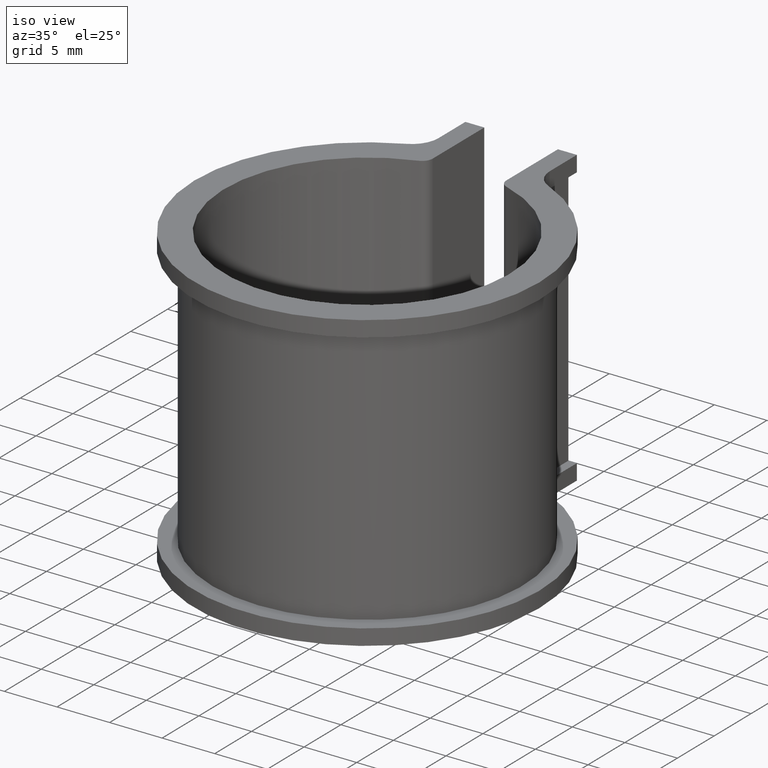
[diagram: clean part render]
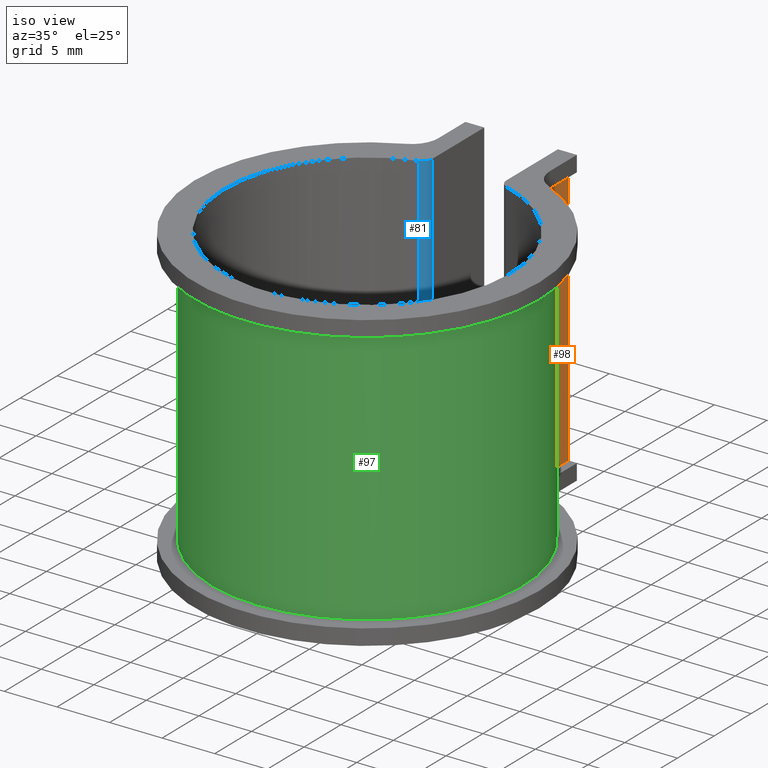
[diagram: same view with three faces highlighted in distinct colors, each labeled with its STEP entity id]
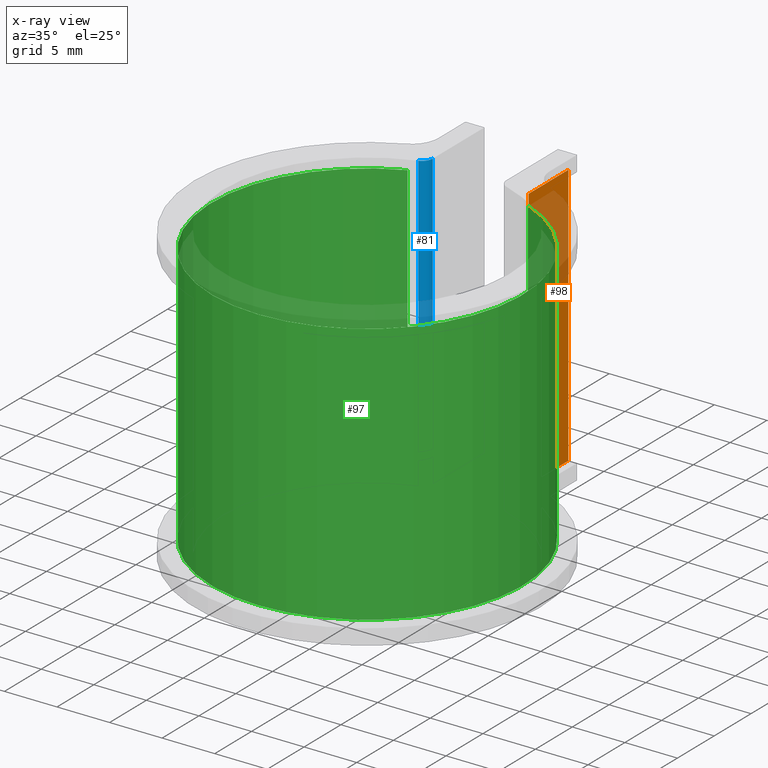
[diagram: x-ray of the same camera — body ghosted, the three highlighted faces saturated]
A machine part, iso view with three faces highlighted in distinct colors.
The next image is the same camera in x-ray (body ghosted, the three faces saturated) — at least one of them is partly hidden behind the body in this view.
Their STEP definitions:

[orange] entity #98 — the highlighted planar face has unit normal (1, -0, 0).
#98 = ADVANCED_FACE( '', ( #148 ), #149, .T. );
#148 = FACE_OUTER_BOUND( '', #200, .T. );
#149 = PLANE( '', #201 );
#200 = EDGE_LOOP( '', ( #407, #408, #409, #410 ) );
#201 = AXIS2_PLACEMENT_3D( '', #411, #412, #413 );
#407 = ORIENTED_EDGE( '', *, *, #445, .F. );
#408 = ORIENTED_EDGE( '', *, *, #499, .T. );
#409 = ORIENTED_EDGE( '', *, *, #485, .T. );
#410 = ORIENTED_EDGE( '', *, *, #482, .T. );
#411 = CARTESIAN_POINT( '', ( 4.50000000000001, 14.0992907623043, -25.0000000000000 ) );
#412 = DIRECTION( '', ( 1.00000000000000, -8.32667268468867E-017, 0.000000000000000 ) );
#413 = DIRECTION( '', ( -8.32667268468867E-017, -1.00000000000000, 0.000000000000000 ) );
#445 = EDGE_CURVE( '', #532, #534, #535, .T. );
#482 = EDGE_CURVE( '', #594, #534, #595, .T. );
#485 = EDGE_CURVE( '', #599, #594, #600, .T. );
#499 = EDGE_CURVE( '', #532, #599, #619, .T. );
#532 = VERTEX_POINT( '', #667 );
#534 = VERTEX_POINT( '', #669 );
#535 = LINE( '', #670, #671 );
#594 = VERTEX_POINT( '', #749 );
#595 = LINE( '', #750, #751 );
#599 = VERTEX_POINT( '', #757 );
#600 = LINE( '', #758, #759 );
#619 = LINE( '', #786, #787 );
#667 = CARTESIAN_POINT( '', ( 4.50000000000001, 15.4916106328554, 0.000000000000000 ) );
#669 = CARTESIAN_POINT( '', ( 4.50000000000001, 20.8992907623043, 0.000000000000000 ) );
#670 = CARTESIAN_POINT( '', ( 4.50000000000001, 14.0992907623043, 0.000000000000000 ) );
#671 = VECTOR( '', #809, 1000.00000000000 );
#749 = CARTESIAN_POINT( '', ( 4.50000000000001, 20.8992907623043, -25.0000000000000 ) );
#750 = CARTESIAN_POINT( '', ( 4.50000000000001, 20.8992907623043, -25.0000000000000 ) );
#751 = VECTOR( '', #880, 1000.00000000000 );
#757 = CARTESIAN_POINT( '', ( 4.50000000000001, 15.4916106328554, -25.0000000000000 ) );
#758 = CARTESIAN_POINT( '', ( 4.50000000000001, 14.0992907623043, -25.0000000000000 ) );
#759 = VECTOR( '', #883, 1000.00000000000 );
#786 = CARTESIAN_POINT( '', ( 4.50000000000001, 15.4916106328554, -25.0000000000000 ) );
#787 = VECTOR( '', #907, 1000.00000000000 );
#809 = DIRECTION( '', ( 8.32667268468867E-017, 1.00000000000000, 0.000000000000000 ) );
#880 = DIRECTION( '', ( 0.000000000000000, 0.000000000000000, 1.00000000000000 ) );
#883 = DIRECTION( '', ( 8.32667268468867E-017, 1.00000000000000, 0.000000000000000 ) );
#907 = DIRECTION( '', ( 0.000000000000000, 0.000000000000000, -1.00000000000000 ) );

[blue] entity #81 — the highlighted cylindrical surface (edge-blend (fillet) strip) has radius 1 mm, axis along (0, 0, -1).
#81 = ADVANCED_FACE( '', ( #114 ), #115, .T. );
#114 = FACE_OUTER_BOUND( '', #166, .T. );
#115 = CYLINDRICAL_SURFACE( '', #167, 1.00000000000000 );
#166 = EDGE_LOOP( '', ( #268, #269, #270, #271 ) );
#167 = AXIS2_PLACEMENT_3D( '', #272, #273, #274 );
#268 = ORIENTED_EDGE( '', *, *, #454, .F. );
#269 = ORIENTED_EDGE( '', *, *, #466, .F. );
#270 = ORIENTED_EDGE( '', *, *, #467, .F. );
#271 = ORIENTED_EDGE( '', *, *, #463, .F. );
#272 = CARTESIAN_POINT( '', ( -4.49999999999999, 13.8892044408598, -25.0000000000000 ) );
#273 = DIRECTION( '', ( 0.000000000000000, 0.000000000000000, -1.00000000000000 ) );
#274 = DIRECTION( '', ( 1.00000000000000, 0.000000000000000, 0.000000000000000 ) );
#454 = EDGE_CURVE( '', #548, #550, #551, .F. );
#463 = EDGE_CURVE( '', #550, #566, #567, .T. );
#466 = EDGE_CURVE( '', #571, #548, #572, .F. );
#467 = EDGE_CURVE( '', #566, #571, #573, .T. );
#548 = VERTEX_POINT( '', #687 );
#550 = VERTEX_POINT( '', #690 );
#551 = CIRCLE( '', #691, 1.00000000000000 );
#566 = VERTEX_POINT( '', #709 );
#567 = LINE( '', #710, #711 );
#571 = VERTEX_POINT( '', #716 );
#572 = LINE( '', #717, #718 );
#573 = CIRCLE( '', #719, 1.00000000000000 );
#687 = CARTESIAN_POINT( '', ( -3.50000000000000, 13.8892044408598, -26.5000000000000 ) );
#690 = CARTESIAN_POINT( '', ( -4.19178082191780, 12.9378890681982, -26.5000000000000 ) );
#691 = AXIS2_PLACEMENT_3D( '', #826, #827, #828 );
#709 = CARTESIAN_POINT( '', ( -4.19178082191780, 12.9378890681982, 1.50000000000000 ) );
#710 = CARTESIAN_POINT( '', ( -4.19178082191780, 12.9378890681982, -25.0000000000000 ) );
#711 = VECTOR( '', #847, 1000.00000000000 );
#716 = CARTESIAN_POINT( '', ( -3.50000000000000, 13.8892044408598, 1.50000000000000 ) );
#717 = CARTESIAN_POINT( '', ( -3.49999999999999, 13.8892044408598, -25.0000000000000 ) );
#718 = VECTOR( '', #852, 1000.00000000000 );
#719 = AXIS2_PLACEMENT_3D( '', #853, #854, #855 );
#826 = CARTESIAN_POINT( '', ( -4.49999999999999, 13.8892044408598, -26.5000000000000 ) );
#827 = DIRECTION( '', ( 0.000000000000000, 0.000000000000000, 1.00000000000000 ) );
#828 = DIRECTION( '', ( 1.00000000000000, 0.000000000000000, 0.000000000000000 ) );
#847 = DIRECTION( '', ( 0.000000000000000, 0.000000000000000, 1.00000000000000 ) );
#852 = DIRECTION( '', ( 0.000000000000000, 0.000000000000000, 1.00000000000000 ) );
#853 = CARTESIAN_POINT( '', ( -4.49999999999999, 13.8892044408598, 1.50000000000000 ) );
#854 = DIRECTION( '', ( 0.000000000000000, 0.000000000000000, 1.00000000000000 ) );
#855 = DIRECTION( '', ( 1.00000000000000, 0.000000000000000, 0.000000000000000 ) );

[green] entity #97 — the highlighted cylindrical surface (partial cylindrical patch) has radius 14.8 mm, axis along (0, 0, -1).
#97 = ADVANCED_FACE( '', ( #146 ), #147, .T. );
#146 = FACE_OUTER_BOUND( '', #198, .T. );
#147 = CYLINDRICAL_SURFACE( '', #199, 14.8000000000000 );
#198 = EDGE_LOOP( '', ( #400, #401, #402, #403 ) );
#199 = AXIS2_PLACEMENT_3D( '', #404, #405, #406 );
#400 = ORIENTED_EDGE( '', *, *, #487, .T. );
#401 = ORIENTED_EDGE( '', *, *, #497, .T. );
#402 = ORIENTED_EDGE( '', *, *, #443, .F. );
#403 = ORIENTED_EDGE( '', *, *, #498, .T. );
#404 = CARTESIAN_POINT( '', ( -4.33680868994202E-016, 0.000000000000000, -25.0000000000000 ) );
#405 = DIRECTION( '', ( 0.000000000000000, 0.000000000000000, -1.00000000000000 ) );
#406 = DIRECTION( '', ( -0.257352941176470, -0.966317475609243, 0.000000000000000 ) );
#443 = EDGE_CURVE( '', #529, #530, #531, .T. );
#487 = EDGE_CURVE( '', #603, #601, #604, .T. );
#497 = EDGE_CURVE( '', #601, #530, #617, .T. );
#498 = EDGE_CURVE( '', #529, #603, #618, .F. );
#529 = VERTEX_POINT( '', #664 );
#530 = VERTEX_POINT( '', #665 );
#531 = CIRCLE( '', #666, 14.8000000000000 );
#601 = VERTEX_POINT( '', #760 );
#603 = VERTEX_POINT( '', #762 );
#604 = CIRCLE( '', #763, 14.8000000000000 );
#617 = LINE( '', #782, #783 );
#618 = LINE( '', #784, #785 );
#664 = CARTESIAN_POINT( '', ( -5.72619047619047, 13.6473712718012, 0.000000000000000 ) );
#665 = CARTESIAN_POINT( '', ( 5.72619047619048, 13.6473712718012, 0.000000000000000 ) );
#666 = AXIS2_PLACEMENT_3D( '', #803, #804, #805 );
#760 = CARTESIAN_POINT( '', ( 5.72619047619048, 13.6473712718012, -25.0000000000000 ) );
#762 = CARTESIAN_POINT( '', ( -5.72619047619047, 13.6473712718012, -25.0000000000000 ) );
#763 = AXIS2_PLACEMENT_3D( '', #887, #888, #889 );
#782 = CARTESIAN_POINT( '', ( 5.72619047619048, 13.6473712718012, -25.0000000000000 ) );
#783 = VECTOR( '', #905, 1000.00000000000 );
#784 = CARTESIAN_POINT( '', ( -5.72619047619047, 13.6473712718012, -25.0000000000000 ) );
#785 = VECTOR( '', #906, 1000.00000000000 );
#803 = CARTESIAN_POINT( '', ( -4.33680868994202E-016, 0.000000000000000, 0.000000000000000 ) );
#804 = DIRECTION( '', ( 0.000000000000000, 0.000000000000000, 1.00000000000000 ) );
#805 = DIRECTION( '', ( 1.00000000000000, 8.32667268468867E-017, 0.000000000000000 ) );
#887 = CARTESIAN_POINT( '', ( -4.33680868994202E-016, 0.000000000000000, -25.0000000000000 ) );
#888 = DIRECTION( '', ( 0.000000000000000, 0.000000000000000, 1.00000000000000 ) );
#889 = DIRECTION( '', ( 1.00000000000000, 8.32667268468867E-017, 0.000000000000000 ) );
#905 = DIRECTION( '', ( 0.000000000000000, 0.000000000000000, 1.00000000000000 ) );
#906 = DIRECTION( '', ( 0.000000000000000, 0.000000000000000, 1.00000000000000 ) );